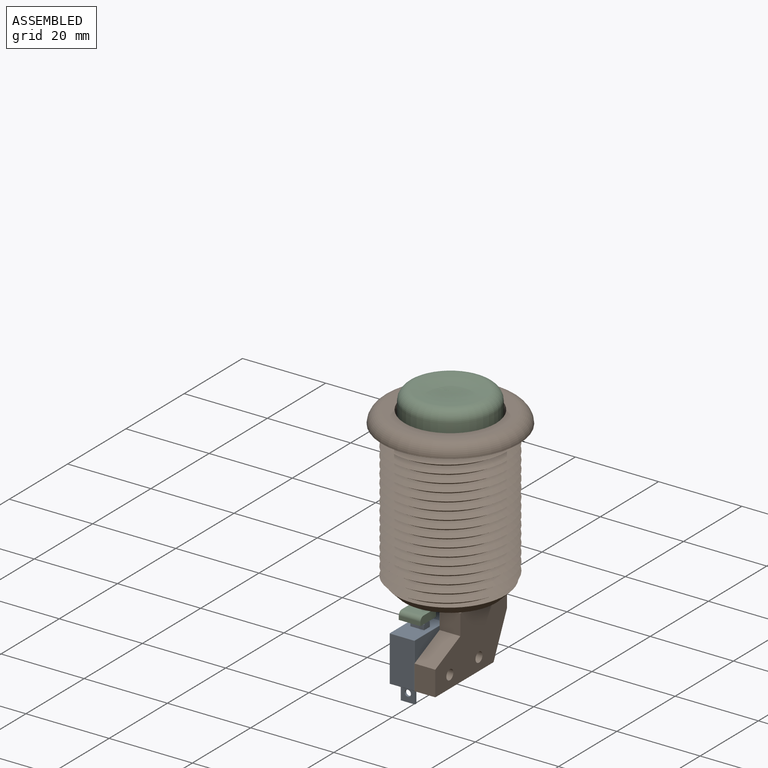
[diagram: assembled view]
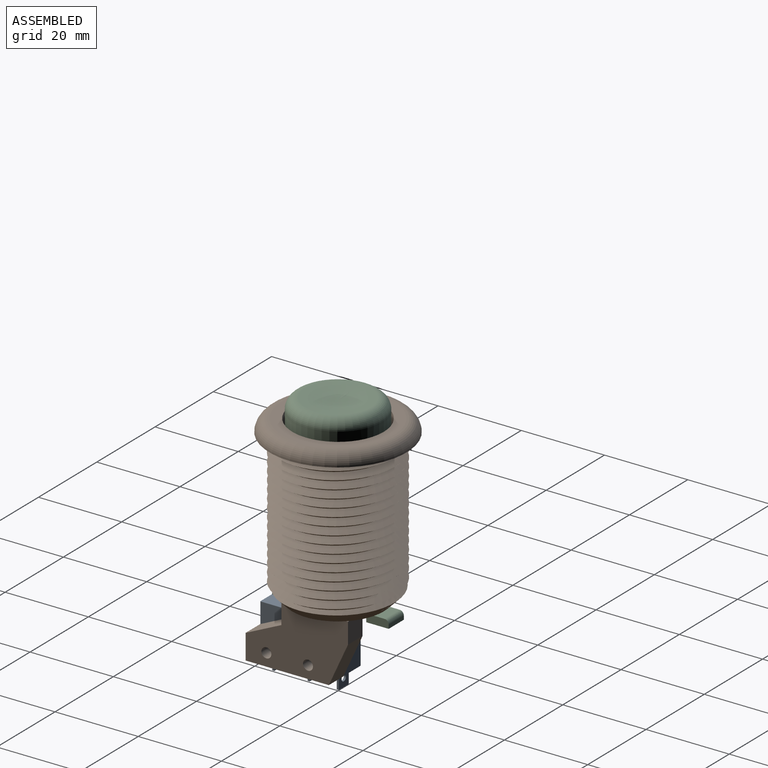
[diagram: assembled view, second angle]
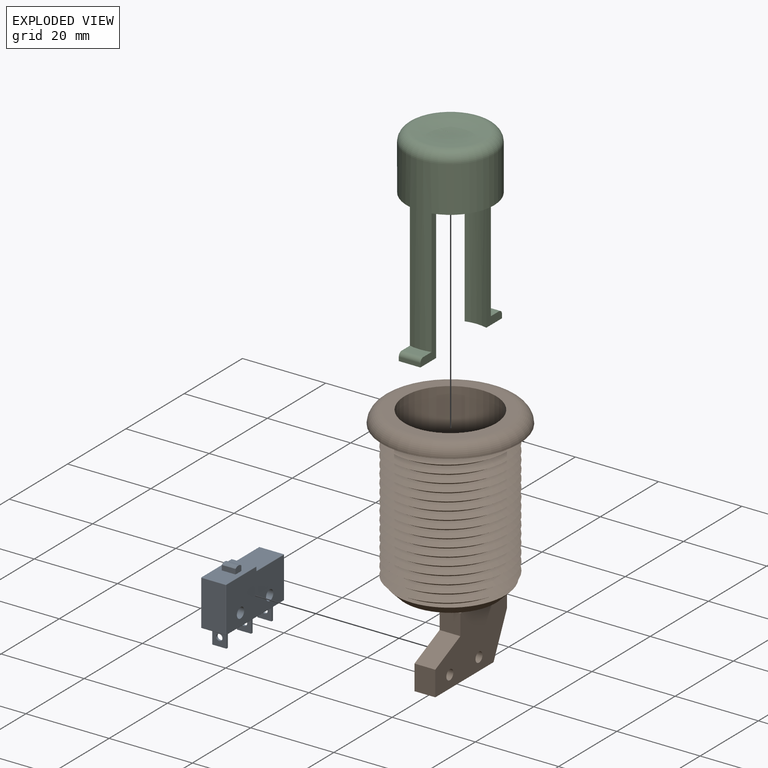
[diagram: exploded view]
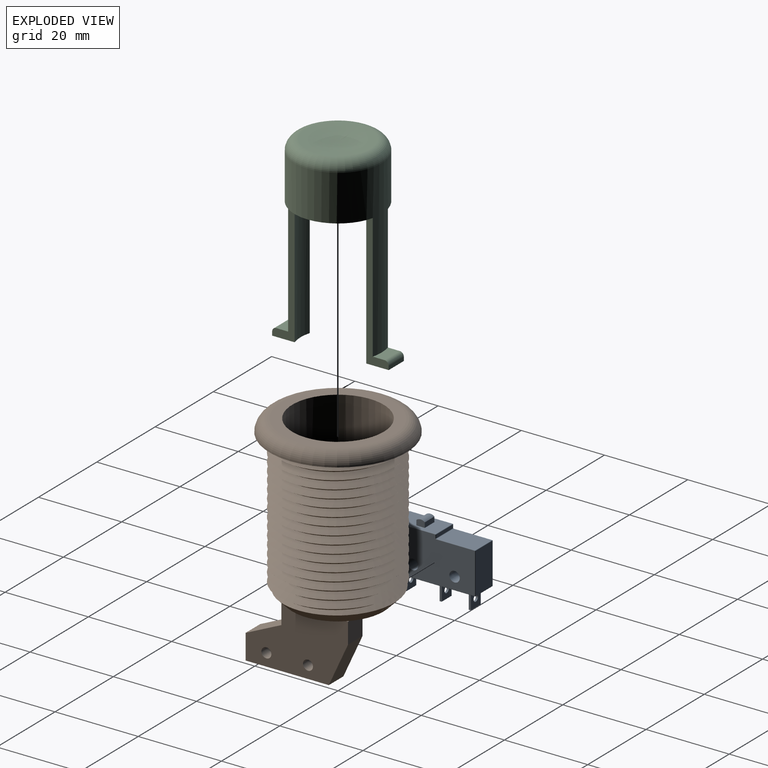
[diagram: exploded view, second angle]
ASSEMBLY  parts=3 mates=2
PART A: 63 faces, bbox 20x16.6x6 mm
  f0: plane 10.8x5.8mm, normal (-1,0,0), area 62.6mm2, adj f16,f17,f25,f26
  f1: plane 19.8x5.8mm, normal (0,-1,0), area 109.7mm2, adj f10,f14,f15,f16,f45,f46,f47,f48
  f2: plane 9.8x5.8mm, normal (1,0,0), area 56.8mm2, adj f13,f14,f23,f24
  f3: plane 9.3x5.8mm, normal (0,1,0), area 53.9mm2, adj f22,f23,f33,f34
  f4: plane 5.8x0.8mm, normal (1,0,0), area 4.6mm2, adj f28,f33,f36,f39
  f5: cylinder r=1.25mm len=6mm, axis (0,0,-1), area 47.1mm2, adj f8,f9
  f6: plane 10.3x5.8mm, normal (0,1,0), area 53.1mm2, adj f26,f27,f35,f36,f40,f42,f43,f44
  f7: cylinder r=1.25mm len=6mm, axis (0,0,-1), area 47.1mm2, adj f8,f9
  f8: plane 19.8x10.8mm, normal (0,0,1), area 194.5mm2, adj f5,f7,f15,f24,f25,f34,f35,f37
  f9: plane 19.8x10.8mm, normal (0,0,-1), area 194.5mm2, adj f5,f7,f10,f13,f17,f22,f27,f28
  f10: cylinder r=0.1mm len=19.8mm, axis (1,0,0), area 3.1mm2, adj f1,f9,f11,f12
  f11: sphere r=0.1mm, area 0mm2, adj f10,f13,f14
  f12: sphere r=0.1mm, area 0mm2, adj f10,f16,f17
  f13: cylinder r=0.1mm len=9.8mm, axis (0,1,0), area 1.5mm2, adj f2,f9,f11,f18
  f14: cylinder r=0.1mm len=5.8mm, axis (0,0,1), area 0.9mm2, adj f1,f2,f11,f19
  f15: cylinder r=0.1mm len=19.8mm, axis (-1,0,0), area 3.1mm2, adj f1,f8,f19,f20
  f16: cylinder r=0.1mm len=5.8mm, axis (0,0,1), area 0.9mm2, adj f0,f1,f12,f20
  f17: cylinder r=0.1mm len=10.8mm, axis (0,-1,0), area 1.7mm2, adj f0,f9,f12,f21
  f18: sphere r=0.1mm, area 0mm2, adj f13,f22,f23
  f19: sphere r=0.1mm, area 0mm2, adj f14,f15,f24
  f20: sphere r=0.1mm, area 0mm2, adj f15,f16,f25
  f21: sphere r=0.1mm, area 0mm2, adj f17,f26,f27
  f22: cylinder r=0.1mm len=9.3mm, axis (-1,0,0), area 1.5mm2, adj f3,f9,f18,f29
  f23: cylinder r=0.1mm len=5.8mm, axis (0,0,-1), area 0.9mm2, adj f2,f3,f18,f30
  f24: cylinder r=0.1mm len=9.8mm, axis (0,-1,0), area 1.5mm2, adj f2,f8,f19,f30
  f25: cylinder r=0.1mm len=10.8mm, axis (0,1,0), area 1.7mm2, adj f0,f8,f20,f31
  f26: cylinder r=0.1mm len=5.8mm, axis (0,0,-1), area 0.9mm2, adj f0,f6,f21,f31
  f27: cylinder r=0.1mm len=10.3mm, axis (-1,0,0), area 1.6mm2, adj f6,f9,f21,f32
  f28: cylinder r=0.1mm len=0.8mm, axis (0,1,0), area 0.1mm2, adj f4,f9,f29,f32
  f29: torus R=0.2mm, axis (0,0,1), area 0mm2, adj f9,f22,f28,f33
  f30: sphere r=0.1mm, area 0mm2, adj f23,f24,f34
  f31: sphere r=0.1mm, area 0mm2, adj f25,f26,f35
  f32: sphere r=0.1mm, area 0mm2, adj f27,f28,f36
  f33: cylinder r=0.1mm len=5.8mm, axis (0,0,-1), area 0.9mm2, adj f3,f4,f29,f37
  f34: cylinder r=0.1mm len=9.3mm, axis (1,0,0), area 1.5mm2, adj f3,f8,f30,f37
  f35: cylinder r=0.1mm len=10.3mm, axis (1,0,0), area 1.6mm2, adj f6,f8,f31,f38
  f36: cylinder r=0.1mm len=5.8mm, axis (0,0,1), area 0.9mm2, adj f4,f6,f32,f38
  f37: torus R=0.2mm, axis (0,0,1), area 0mm2, adj f8,f33,f34,f39
  f38: sphere r=0.1mm, area 0mm2, adj f35,f36,f39
  f39: cylinder r=0.1mm len=0.8mm, axis (0,-1,0), area 0.1mm2, adj f4,f8,f37,f38
  f40: plane 3.3x1.2mm, normal (1,0,0), area 4mm2, adj f6,f41,f43,f44
  f41: cylinder r=1.5mm len=3.3mm, axis (0,0,-1), area 7.2mm2, adj f40,f42,f43,f44
  f42: plane 3.3x1.2mm, normal (-1,0,0), area 4mm2, adj f6,f41,f43,f44
  f43: plane 2x1.58mm, normal (0,0,1), area 2.9mm2, adj f6,f40,f41,f42
  f44: plane 2x1.58mm, normal (0,0,-1), area 2.9mm2, adj f6,f40,f41,f42
  f45: plane 4x0.5mm, normal (0,0,1), area 2mm2, adj f1,f46,f48,f49
  f46: plane 4x3.4mm, normal (-1,0,0), area 11.8mm2, adj f1,f45,f47,f49,f62
  f47: plane 4x0.5mm, normal (0,0,-1), area 2mm2, adj f1,f46,f48,f49
  f48: plane 4x3.4mm, normal (1,0,0), area 11.8mm2, adj f1,f45,f47,f49,f62
  f49: plane 3.4x0.5mm, normal (0,-1,0), area 1.7mm2, adj f45,f46,f47,f48
  f50: plane 4x0.5mm, normal (0,0,1), area 2mm2, adj f1,f51,f53,f54
  f51: plane 4x3.4mm, normal (-1,0,0), area 11.8mm2, adj f1,f50,f52,f54,f61
  f52: plane 4x0.5mm, normal (0,0,-1), area 2mm2, adj f1,f51,f53,f54
  f53: plane 4x3.4mm, normal (1,0,0), area 11.8mm2, adj f1,f50,f52,f54,f61
  f54: plane 3.4x0.5mm, normal (0,-1,0), area 1.7mm2, adj f50,f51,f52,f53
  f55: plane 4x0.5mm, normal (0,0,1), area 2mm2, adj f1,f56,f58,f59
  f56: plane 4x3.4mm, normal (-1,0,0), area 11.8mm2, adj f1,f55,f57,f59,f60
  f57: plane 4x0.5mm, normal (0,0,-1), area 2mm2, adj f1,f56,f58,f59
  f58: plane 4x3.4mm, normal (1,0,0), area 11.8mm2, adj f1,f55,f57,f59,f60
  f59: plane 3.4x0.5mm, normal (0,-1,0), area 1.7mm2, adj f55,f56,f57,f58
  f60: cylinder r=0.75mm len=1.5mm, axis (1,0,0), area 2.4mm2, adj f56,f58
  f61: cylinder r=0.75mm len=1.5mm, axis (1,0,0), area 2.4mm2, adj f51,f53
  f62: cylinder r=0.75mm len=1.5mm, axis (1,0,0), area 2.4mm2, adj f46,f48
PART B: 31 faces, bbox 35.7x35.7x54 mm
  f0: plane 21.22x18.55mm, normal (0,0,-1), area 189.5mm2, adj f8,f13,f14,f15,f16,f17,f18,f21
  f1: plane 15.1x3mm, normal (0,0,-1), area 31.1mm2, adj f8,f29
  f2: plane 22x21.22mm, normal (0,0,1), area 300.4mm2, adj f4,f13,f14,f15,f16,f17,f18
  f3: cylinder r=14mm len=33mm, axis (0,0,-1), area -51.5mm2, adj f6,f8,f10,f11,f12
  f4: cylinder r=11mm len=39mm, axis (0,0,-1), area 2580.7mm2, adj f2,f5,f8,f13,f14,f16,f18
  f5: plane 27x27mm, normal (0,0,1), area 192.4mm2, adj f4,f7
  f6: plane 33x33mm, normal (0,0,-1), area 239.5mm2, adj f3,f7,f9
  f7: torus R=13.5mm, axis (0,0,1), area 456.3mm2, adj f5,f6
  f8: cone r=14mm half-angle=45deg, axis (0,0,1), area 230.2mm2, adj f0,f1,f3,f4,f11,f12,f19,f20
  f9: cylinder r=14mm len=28mm, axis (0,0,1), area 76.9mm2, adj f6,f10,f11
  f10: plane 2x1.73mm, normal (0,-1,0), area 1.7mm2, adj f3,f9,f11,f12
  f11: bspline ~36.67x32.33mm, area 2914.2mm2, adj f3,f8,f9,f10,f12
  f12: bspline ~36.67x32.33mm, area 2831mm2, adj f3,f8,f10,f11
  f13: plane 6.61x2mm, normal (1,0,0), area 13.2mm2, adj f0,f2,f4,f15
  f14: plane 6.61x2mm, normal (-1,0,0), area 13.2mm2, adj f0,f2,f4,f15
  f15: plane 5.8x2mm, normal (0,-1,0), area 11.6mm2, adj f0,f2,f13,f14
  f16: plane 6.61x2mm, normal (1,0,0), area 13.2mm2, adj f0,f2,f4,f17
  f17: plane 5.8x2mm, normal (0,1,0), area 11.6mm2, adj f0,f2,f16,f18
  f18: plane 6.61x2mm, normal (-1,0,0), area 13.2mm2, adj f0,f2,f4,f17
  f19: plane 0.45x0.45mm, normal (0,0,1), area 0.1mm2, adj f8,f21,f29
  f20: plane 0.45x0.45mm, normal (0,0,1), area 0.1mm2, adj f8,f26,f29
  f21: plane 5x5mm, normal (0,-1,0), area 25mm2, adj f0,f19,f22,f29,f30
  f22: plane 8.61x5mm, normal (0,-0.42,0.91), area 47.5mm2, adj f21,f23,f29,f30
  f23: plane 6x5mm, normal (0,-1,0), area 30mm2, adj f22,f24,f29,f30
  f24: plane 20x5mm, normal (0,0,-1), area 100mm2, adj f23,f25,f29,f30
  f25: plane 10x5mm, normal (0,0.91,-0.42), area 55.1mm2, adj f24,f26,f29,f30
  f26: plane 5x5mm, normal (0,1,0), area 25mm2, adj f0,f20,f25,f29,f30
  f27: cylinder r=1.2mm len=5mm, axis (-1,0,0), area 37.7mm2, adj f29,f30
  f28: cylinder r=1.2mm len=5mm, axis (-1,0,0), area 37.7mm2, adj f29,f30
  f29: plane 24.61x15mm, normal (1,0,0), area 276.8mm2, adj f1,f19,f20,f21,f22,f23,f24,f25
  f30: plane 24.61x15mm, normal (-1,0,0), area 276.8mm2, adj f0,f21,f22,f23,f24,f25,f26,f27
PART C: 19 faces, bbox 22.7x28x45.5 mm
  f0: cylinder r=10.5mm len=41.1mm, axis (0,0,1), area 1042.1mm2, adj f1,f2,f4,f7,f8,f10,f11,f13
  f1: plane 20.35x7.9mm, normal (0,0,-1), area 38mm2, adj f0,f5,f7,f11
  f2: plane 20.35x7.9mm, normal (0,0,-1), area 38mm2, adj f0,f5,f8,f10
  f3: revolved ~15.9x15.9mm, area 199.1mm2, adj f4
  f4: torus R=8mm, axis (0,0,1), area 239.1mm2, adj f0,f3
  f5: cylinder r=9mm len=37mm, axis (0,0,-1), area 620.4mm2, adj f1,f2,f6,f7,f8,f9,f10,f11
  f6: plane 18x18mm, normal (0,0,-1), area 254.5mm2, adj f5
  f7: plane 32x5.38mm, normal (1,0,0), area 56.9mm2, adj f0,f1,f5,f9,f15,f16,f17
  f8: plane 32x5.38mm, normal (-1,0,0), area 56.9mm2, adj f0,f2,f5,f9,f15,f16,f17
  f9: plane 5.38x5.2mm, normal (0,0,-1), area 26.7mm2, adj f5,f7,f8,f16
  f10: plane 32x5.38mm, normal (-1,0,0), area 56.9mm2, adj f0,f2,f5,f12,f13,f14,f18
  f11: plane 32x5.38mm, normal (1,0,0), area 56.9mm2, adj f0,f1,f5,f12,f13,f14,f18
  f12: plane 5.38x5.2mm, normal (0,0,-1), area 26.7mm2, adj f5,f10,f11,f14
  f13: plane 5.2x2.83mm, normal (0,0,1), area 13.6mm2, adj f0,f10,f11,f18
  f14: plane 5.2x0.9mm, normal (0,-1,0), area 4.7mm2, adj f10,f11,f12,f18
  f15: plane 5.2x2.83mm, normal (0,0,1), area 13.6mm2, adj f0,f7,f8,f17
  f16: plane 5.2x0.9mm, normal (0,1,0), area 4.7mm2, adj f7,f8,f9,f17
  f17: cylinder r=1mm len=5.2mm, axis (1,0,0), area 8.2mm2, adj f7,f8,f15,f16
  f18: cylinder r=1mm len=5.2mm, axis (1,0,0), area 8.2mm2, adj f10,f11,f13,f14
PLACE A rot(axis=(0.58,0.58,0.58),120deg) t=(-3,-16.61,-15)mm
PLACE B at identity fixed
PLACE C at identity
MATE slider C.f4 <-> B.f4  axis (0,0,1) through (0,0,41)mm
MATE fastened A.f7 <-> B.f28  axis (1,0,0) through (3,-1.61,-12)mm
